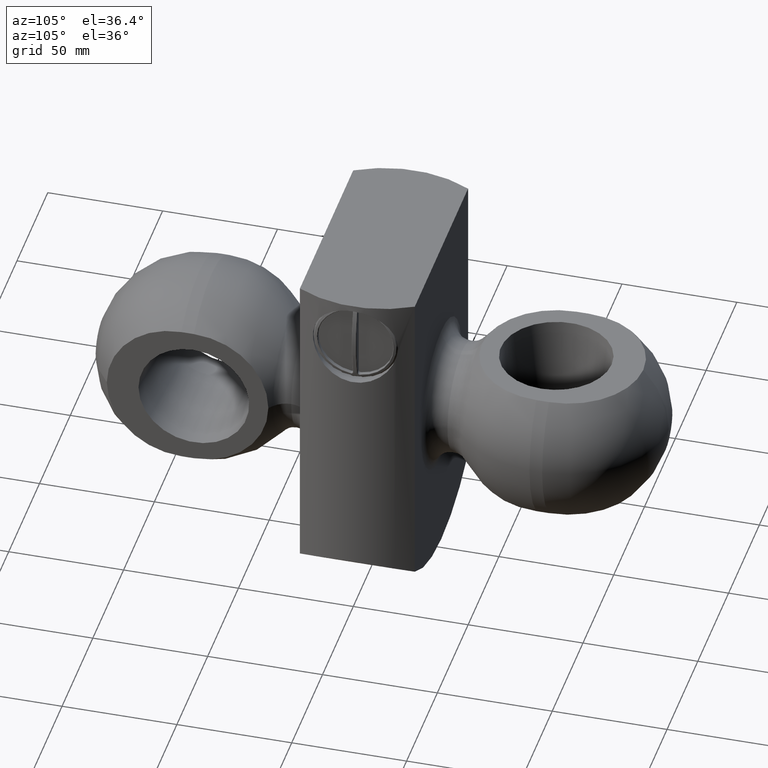
[diagram: clean part render]
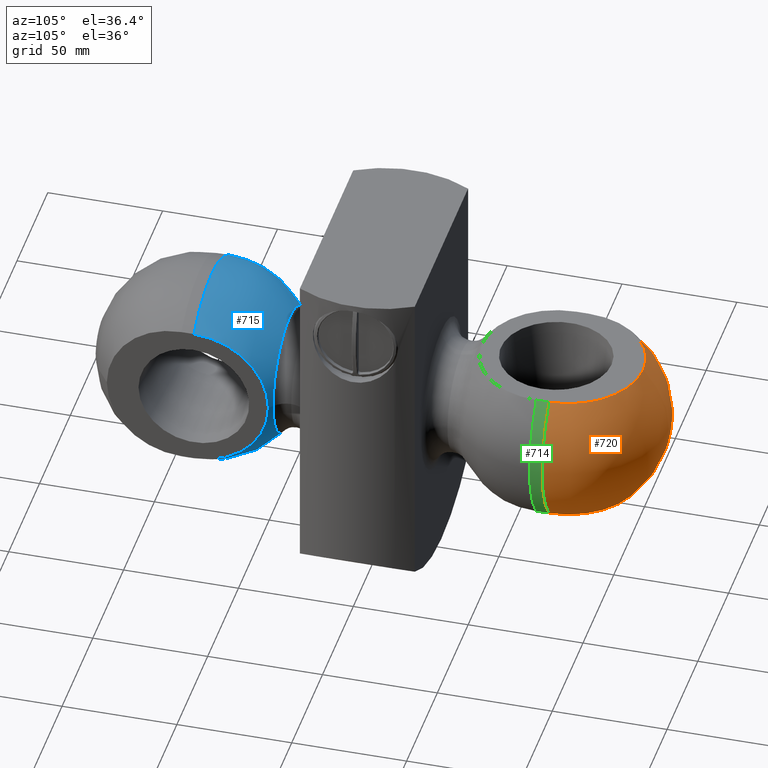
[diagram: same view with three faces highlighted in distinct colors, each labeled with its STEP entity id]
A machine part, auxiliary view with three faces highlighted in distinct colors.
Their STEP definitions:

[orange] entity #720 — the highlighted spherical surface has radius 43.5 mm.
#29=SPHERICAL_SURFACE('',#861,43.5);
#112=FACE_OUTER_BOUND('',#161,.T.);
#161=EDGE_LOOP('',(#650,#651,#652,#653,#654,#655,#656));
#267=CIRCLE('',#833,32.422985673747);
#269=CIRCLE('',#836,32.422985673747);
#272=CIRCLE('',#839,32.422985673747);
#273=CIRCLE('',#841,43.5);
#288=CIRCLE('',#862,43.5);
#289=CIRCLE('',#863,43.5);
#339=VERTEX_POINT('',#1538);
#340=VERTEX_POINT('',#1539);
#343=VERTEX_POINT('',#1547);
#344=VERTEX_POINT('',#1548);
#348=VERTEX_POINT('',#1556);
#358=VERTEX_POINT('',#1592);
#432=EDGE_CURVE('',#339,#340,#267,.T.);
#436=EDGE_CURVE('',#343,#344,#269,.T.);
#441=EDGE_CURVE('',#344,#348,#272,.T.);
#442=EDGE_CURVE('',#339,#348,#273,.T.);
#458=EDGE_CURVE('',#343,#340,#288,.T.);
#459=EDGE_CURVE('',#358,#344,#289,.T.);
#650=ORIENTED_EDGE('',*,*,#432,.T.);
#651=ORIENTED_EDGE('',*,*,#458,.F.);
#652=ORIENTED_EDGE('',*,*,#436,.T.);
#653=ORIENTED_EDGE('',*,*,#459,.F.);
#654=ORIENTED_EDGE('',*,*,#459,.T.);
#655=ORIENTED_EDGE('',*,*,#441,.T.);
#656=ORIENTED_EDGE('',*,*,#442,.F.);
#720=ADVANCED_FACE('',(#112),#29,.T.);
#833=AXIS2_PLACEMENT_3D('',#1540,#1034,#1035);
#836=AXIS2_PLACEMENT_3D('',#1549,#1042,#1043);
#839=AXIS2_PLACEMENT_3D('',#1558,#1050,#1051);
#841=AXIS2_PLACEMENT_3D('',#1560,#1054,#1055);
#861=AXIS2_PLACEMENT_3D('',#1590,#1095,#1096);
#862=AXIS2_PLACEMENT_3D('',#1591,#1097,#1098);
#863=AXIS2_PLACEMENT_3D('',#1593,#1099,#1100);
#1034=DIRECTION('center_axis',(0.,0.,1.));
#1035=DIRECTION('ref_axis',(0.,1.,0.));
#1042=DIRECTION('center_axis',(0.,0.,-1.));
#1043=DIRECTION('ref_axis',(0.,-1.,0.));
#1050=DIRECTION('center_axis',(0.,0.,-1.));
#1051=DIRECTION('ref_axis',(0.,-1.,0.));
#1054=DIRECTION('center_axis',(0.,-1.,0.));
#1055=DIRECTION('ref_axis',(1.,0.,0.));
#1095=DIRECTION('center_axis',(0.,1.,-6.12323399573677E-17));
#1096=DIRECTION('ref_axis',(0.,0.,-1.));
#1097=DIRECTION('center_axis',(0.,-1.,0.));
#1098=DIRECTION('ref_axis',(1.,0.,0.));
#1099=DIRECTION('center_axis',(1.,0.,-1.22464679914735E-16));
#1100=DIRECTION('ref_axis',(1.22464679914735E-16,0.,1.));
#1538=CARTESIAN_POINT('',(32.422985673747,80.5,-29.));
#1539=CARTESIAN_POINT('',(-32.422985673747,80.5,-29.));
#1540=CARTESIAN_POINT('Origin',(-6.73555739531043E-16,80.5,-29.));
#1547=CARTESIAN_POINT('',(-32.422985673747,80.5,29.));
#1548=CARTESIAN_POINT('',(2.87791997799628E-15,112.922985673747,29.));
#1549=CARTESIAN_POINT('Origin',(-6.73555739531043E-16,80.5,29.));
#1556=CARTESIAN_POINT('',(32.422985673747,80.5,29.));
#1558=CARTESIAN_POINT('Origin',(-6.73555739531043E-16,80.5,29.));
#1560=CARTESIAN_POINT('Origin',(1.59333708802372E-15,80.5,0.));
#1590=CARTESIAN_POINT('Origin',(-6.73555739531043E-16,80.5,0.));
#1591=CARTESIAN_POINT('Origin',(1.59333708802372E-15,80.5,0.));
#1592=CARTESIAN_POINT('',(-6.73555739531043E-16,124.,2.66360678814549E-15));
#1593=CARTESIAN_POINT('Origin',(-6.73555739531043E-16,80.5,0.));

[blue] entity #715 — the highlighted spherical surface has radius 43.5 mm.
#28=SPHERICAL_SURFACE('',#843,43.5);
#107=FACE_OUTER_BOUND('',#155,.T.);
#155=EDGE_LOOP('',(#620,#621,#622,#623,#624,#625,#626,#627,#628));
#268=CIRCLE('',#834,32.422985673747);
#270=CIRCLE('',#837,32.422985673747);
#271=CIRCLE('',#838,32.422985673747);
#274=CIRCLE('',#842,43.5);
#275=CIRCLE('',#844,43.5);
#276=CIRCLE('',#845,27.1771428571429);
#277=CIRCLE('',#846,27.1771428571429);
#278=CIRCLE('',#847,43.5);
#341=VERTEX_POINT('',#1541);
#342=VERTEX_POINT('',#1543);
#345=VERTEX_POINT('',#1550);
#346=VERTEX_POINT('',#1552);
#347=VERTEX_POINT('',#1554);
#349=VERTEX_POINT('',#1563);
#350=VERTEX_POINT('',#1565);
#434=EDGE_CURVE('',#342,#341,#268,.T.);
#438=EDGE_CURVE('',#346,#345,#270,.T.);
#439=EDGE_CURVE('',#347,#346,#271,.T.);
#443=EDGE_CURVE('',#341,#347,#274,.T.);
#444=EDGE_CURVE('',#346,#349,#275,.T.);
#445=EDGE_CURVE('',#350,#349,#276,.T.);
#446=EDGE_CURVE('',#349,#350,#277,.T.);
#447=EDGE_CURVE('',#345,#342,#278,.T.);
#620=ORIENTED_EDGE('',*,*,#434,.T.);
#621=ORIENTED_EDGE('',*,*,#443,.T.);
#622=ORIENTED_EDGE('',*,*,#439,.T.);
#623=ORIENTED_EDGE('',*,*,#444,.T.);
#624=ORIENTED_EDGE('',*,*,#445,.F.);
#625=ORIENTED_EDGE('',*,*,#446,.F.);
#626=ORIENTED_EDGE('',*,*,#444,.F.);
#627=ORIENTED_EDGE('',*,*,#438,.T.);
#628=ORIENTED_EDGE('',*,*,#447,.T.);
#715=ADVANCED_FACE('',(#107),#28,.T.);
#834=AXIS2_PLACEMENT_3D('',#1544,#1037,#1038);
#837=AXIS2_PLACEMENT_3D('',#1553,#1045,#1046);
#838=AXIS2_PLACEMENT_3D('',#1555,#1047,#1048);
#842=AXIS2_PLACEMENT_3D('',#1561,#1056,#1057);
#843=AXIS2_PLACEMENT_3D('',#1562,#1058,#1059);
#844=AXIS2_PLACEMENT_3D('',#1564,#1060,#1061);
#845=AXIS2_PLACEMENT_3D('',#1566,#1062,#1063);
#846=AXIS2_PLACEMENT_3D('',#1567,#1064,#1065);
#847=AXIS2_PLACEMENT_3D('',#1568,#1066,#1067);
#1037=DIRECTION('center_axis',(0.,0.,1.));
#1038=DIRECTION('ref_axis',(0.,1.,0.));
#1045=DIRECTION('center_axis',(0.,0.,-1.));
#1046=DIRECTION('ref_axis',(0.,-1.,0.));
#1047=DIRECTION('center_axis',(0.,0.,-1.));
#1048=DIRECTION('ref_axis',(0.,-1.,0.));
#1056=DIRECTION('center_axis',(0.,-1.,0.));
#1057=DIRECTION('ref_axis',(1.,0.,0.));
#1058=DIRECTION('center_axis',(0.,1.,-6.12323399573677E-17));
#1059=DIRECTION('ref_axis',(0.,0.,-1.));
#1060=DIRECTION('center_axis',(1.,0.,-1.22464679914735E-16));
#1061=DIRECTION('ref_axis',(1.22464679914735E-16,0.,1.));
#1062=DIRECTION('center_axis',(0.,-1.,0.));
#1063=DIRECTION('ref_axis',(1.,0.,0.));
#1064=DIRECTION('center_axis',(0.,-1.,0.));
#1065=DIRECTION('ref_axis',(1.,0.,0.));
#1066=DIRECTION('center_axis',(0.,-1.,0.));
#1067=DIRECTION('ref_axis',(1.,0.,0.));
#1541=CARTESIAN_POINT('',(32.422985673747,75.,-29.));
#1543=CARTESIAN_POINT('',(-32.422985673747,75.,-29.));
#1544=CARTESIAN_POINT('Origin',(0.,75.,-29.));
#1550=CARTESIAN_POINT('',(-32.422985673747,75.,29.));
#1552=CARTESIAN_POINT('',(3.55147571752732E-15,42.577014326253,29.));
#1553=CARTESIAN_POINT('Origin',(0.,75.,29.));
#1554=CARTESIAN_POINT('',(32.422985673747,75.,29.));
#1555=CARTESIAN_POINT('Origin',(0.,75.,29.));
#1561=CARTESIAN_POINT('Origin',(1.59333708802372E-15,75.,0.));
#1562=CARTESIAN_POINT('Origin',(0.,75.,0.));
#1563=CARTESIAN_POINT('',(3.32824010099704E-15,41.0345336242464,27.1771428571429));
#1564=CARTESIAN_POINT('Origin',(0.,75.,0.));
#1565=CARTESIAN_POINT('',(-27.1771428571429,41.0345336242464,-3.32824010099704E-15));
#1566=CARTESIAN_POINT('Origin',(0.,41.0345336242464,0.));
#1567=CARTESIAN_POINT('Origin',(0.,41.0345336242464,0.));
#1568=CARTESIAN_POINT('Origin',(1.59333708802372E-15,75.,0.));

[green] entity #714 — the highlighted cylindrical surface (partial cylindrical patch) has radius 43.5 mm, axis along (0, -1, 0).
#106=FACE_OUTER_BOUND('',#154,.T.);
#154=EDGE_LOOP('',(#616,#617,#618,#619));
#197=LINE('',#1542,#221);
#200=LINE('',#1557,#224);
#221=VECTOR('',#1036,10.);
#224=VECTOR('',#1049,10.);
#273=CIRCLE('',#841,43.5);
#274=CIRCLE('',#842,43.5);
#339=VERTEX_POINT('',#1538);
#341=VERTEX_POINT('',#1541);
#347=VERTEX_POINT('',#1554);
#348=VERTEX_POINT('',#1556);
#433=EDGE_CURVE('',#341,#339,#197,.T.);
#440=EDGE_CURVE('',#348,#347,#200,.T.);
#442=EDGE_CURVE('',#339,#348,#273,.T.);
#443=EDGE_CURVE('',#341,#347,#274,.T.);
#616=ORIENTED_EDGE('',*,*,#433,.T.);
#617=ORIENTED_EDGE('',*,*,#442,.T.);
#618=ORIENTED_EDGE('',*,*,#440,.T.);
#619=ORIENTED_EDGE('',*,*,#443,.F.);
#677=CYLINDRICAL_SURFACE('',#840,43.5);
#714=ADVANCED_FACE('',(#106),#677,.T.);
#840=AXIS2_PLACEMENT_3D('',#1559,#1052,#1053);
#841=AXIS2_PLACEMENT_3D('',#1560,#1054,#1055);
#842=AXIS2_PLACEMENT_3D('',#1561,#1056,#1057);
#1036=DIRECTION('',(0.,1.,0.));
#1049=DIRECTION('',(0.,-1.,0.));
#1052=DIRECTION('center_axis',(0.,-1.,0.));
#1053=DIRECTION('ref_axis',(1.,0.,0.));
#1054=DIRECTION('center_axis',(0.,-1.,0.));
#1055=DIRECTION('ref_axis',(1.,0.,0.));
#1056=DIRECTION('center_axis',(0.,-1.,0.));
#1057=DIRECTION('ref_axis',(1.,0.,0.));
#1538=CARTESIAN_POINT('',(32.422985673747,80.5,-29.));
#1541=CARTESIAN_POINT('',(32.422985673747,75.,-29.));
#1542=CARTESIAN_POINT('',(32.422985673747,77.75,-29.));
#1554=CARTESIAN_POINT('',(32.422985673747,75.,29.));
#1556=CARTESIAN_POINT('',(32.422985673747,80.5,29.));
#1557=CARTESIAN_POINT('',(32.422985673747,77.75,29.));
#1559=CARTESIAN_POINT('Origin',(1.59333708802372E-15,77.75,0.));
#1560=CARTESIAN_POINT('Origin',(1.59333708802372E-15,80.5,0.));
#1561=CARTESIAN_POINT('Origin',(1.59333708802372E-15,75.,0.));